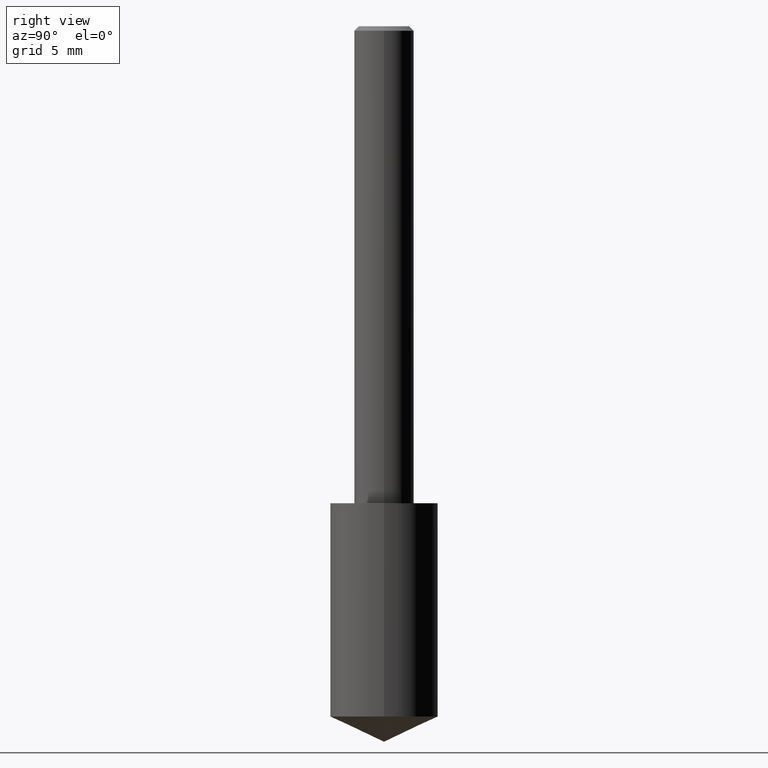
[diagram: clean part render]
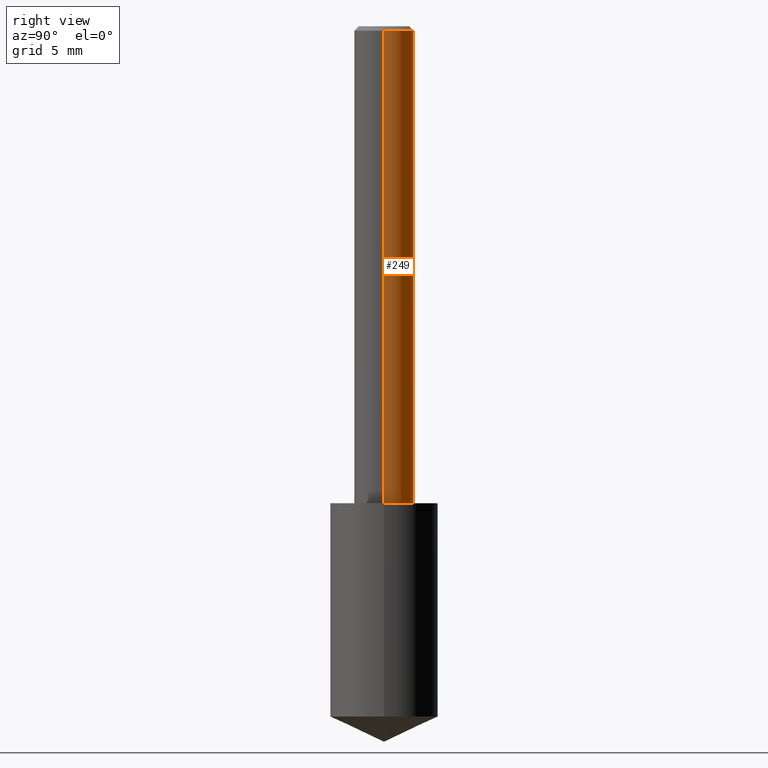
[diagram: same view with one face highlighted and labeled with its STEP entity id]
A machine part, right view. The second image highlights one B-rep face of the part: STEP entity #249.
In plain terms, the highlighted cylindrical surface (edge-blend (fillet) strip) has radius 1.5875 mm, axis along (-0, 0, 1).
Its self-contained STEP definition (entity closure, byte-faithful):
#6 = DIRECTION ( 'NONE',  ( -2.445468806185136877E-29, 3.491481338843145188E-15, 1.000000000000000000 ) ) ;
#11 = DIRECTION ( 'NONE',  ( -2.445468806185136877E-29, 3.491481338843145188E-15, 1.000000000000000000 ) ) ;
#40 = CARTESIAN_POINT ( 'NONE',  ( 0.06250000000000006939, -4.364351673553921624E-16, 3.047610484872463374E-30 ) ) ;
#64 = CYLINDRICAL_SURFACE ( 'NONE', #126, 0.06250000000000006939 ) ;
#67 = CIRCLE ( 'NONE', #251, 0.06250000000000000000 ) ;
#70 = EDGE_CURVE ( 'NONE', #187, #209, #292, .T. ) ;
#79 = DIRECTION ( 'NONE',  ( 1.000000000000000000, -6.982962677686266711E-15, 0.000000000000000000 ) ) ;
#85 = FACE_OUTER_BOUND ( 'NONE', #286, .T. ) ;
#102 = ORIENTED_EDGE ( 'NONE', *, *, #272, .F. ) ;
#104 = EDGE_CURVE ( 'NONE', #327, #209, #67, .T. ) ;
#120 = EDGE_CURVE ( 'NONE', #335, #187, #222, .T. ) ;
#126 = AXIS2_PLACEMENT_3D ( 'NONE', #326, #175, #255 ) ;
#140 = CARTESIAN_POINT ( 'NONE',  ( 2.292627005798580623E-31, -3.273263755165470184E-17, -0.009375000000000060368 ) ) ;
#146 = CARTESIAN_POINT ( 'NONE',  ( -0.06250000000000000000, -1.318017778347336672E-15, -0.009375000000000060368 ) ) ;
#164 = ORIENTED_EDGE ( 'NONE', *, *, #70, .T. ) ;
#175 = DIRECTION ( 'NONE',  ( -2.445468806185136597E-29, 3.491481338843145583E-15, 1.000000000000000000 ) ) ;
#179 = AXIS2_PLACEMENT_3D ( 'NONE', #219, #318, #273 ) ;
#187 = VERTEX_POINT ( 'NONE', #218 ) ;
#209 = VERTEX_POINT ( 'NONE', #146 ) ;
#217 = VECTOR ( 'NONE', #11, 39.37007874015748143 ) ;
#218 = CARTESIAN_POINT ( 'NONE',  ( -0.06250000000000012490, -1.318017778347335489E-15, -1.000000000000000222 ) ) ;
#219 = CARTESIAN_POINT ( 'NONE',  ( 2.445468806185137438E-29, -3.491481338843146371E-15, -1.000000000000000222 ) ) ;
#222 = CIRCLE ( 'NONE', #179, 0.06250000000000012490 ) ;
#223 = DIRECTION ( 'NONE',  ( -2.445468806185136597E-29, 3.491481338843145583E-15, 1.000000000000000000 ) ) ;
#224 = CARTESIAN_POINT ( 'NONE',  ( 0.06250000000000000000, -4.691678049070463404E-16, -0.009375000000000060368 ) ) ;
#249 = ADVANCED_FACE ( 'NONE', ( #85 ), #64, .T. ) ;
#251 = AXIS2_PLACEMENT_3D ( 'NONE', #140, #223, #79 ) ;
#255 = DIRECTION ( 'NONE',  ( 1.000000000000000000, -6.982962677686266711E-15, 4.876176775795935793E-29 ) ) ;
#261 = ORIENTED_EDGE ( 'NONE', *, *, #104, .F. ) ;
#267 = ORIENTED_EDGE ( 'NONE', *, *, #120, .T. ) ;
#272 = EDGE_CURVE ( 'NONE', #335, #327, #302, .T. ) ;
#273 = DIRECTION ( 'NONE',  ( 1.000000000000000000, -6.982962677686264344E-15, 0.000000000000000000 ) ) ;
#274 = CARTESIAN_POINT ( 'NONE',  ( -0.06250000000000006939, 4.440892098500631092E-16, -3.074334431409319267E-30 ) ) ;
#280 = CARTESIAN_POINT ( 'NONE',  ( 0.06250000000000012490, -3.927916506198539224E-15, -1.000000000000000222 ) ) ;
#286 = EDGE_LOOP ( 'NONE', ( #267, #164, #261, #102 ) ) ;
#292 = LINE ( 'NONE', #274, #309 ) ;
#302 = LINE ( 'NONE', #40, #217 ) ;
#309 = VECTOR ( 'NONE', #6, 39.37007874015748143 ) ;
#318 = DIRECTION ( 'NONE',  ( -2.445468806185136597E-29, 3.491481338843145583E-15, 1.000000000000000000 ) ) ;
#326 = CARTESIAN_POINT ( 'NONE',  ( 0.000000000000000000, 0.000000000000000000, 0.000000000000000000 ) ) ;
#327 = VERTEX_POINT ( 'NONE', #224 ) ;
#335 = VERTEX_POINT ( 'NONE', #280 ) ;